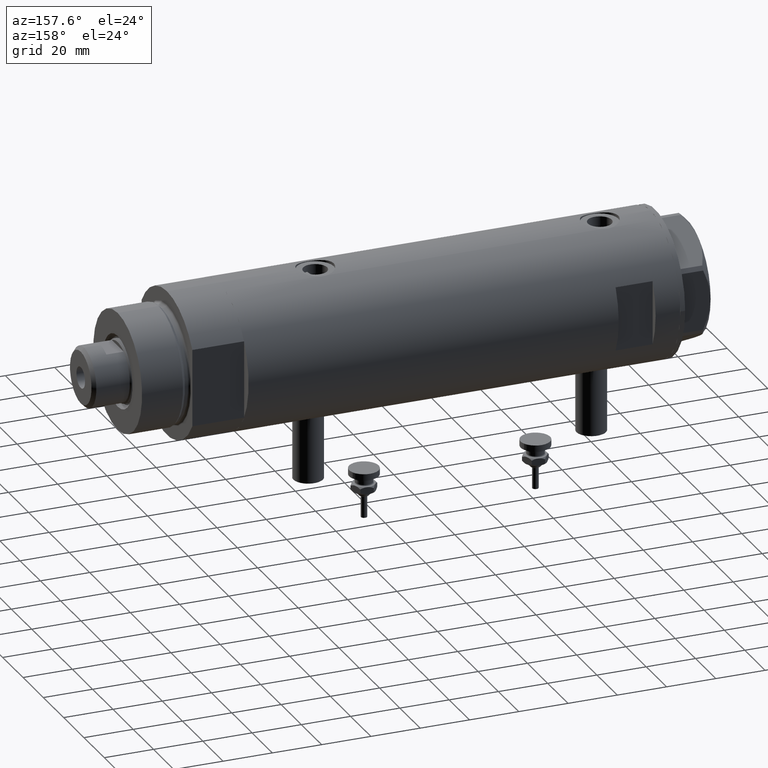
[diagram: clean part render]
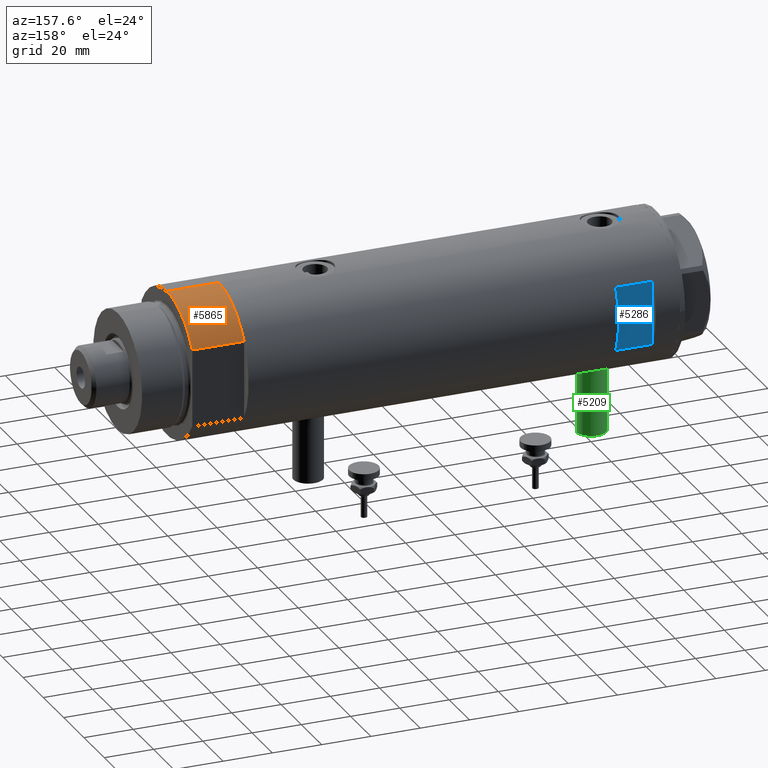
[diagram: same view with three faces highlighted in distinct colors, each labeled with its STEP entity id]
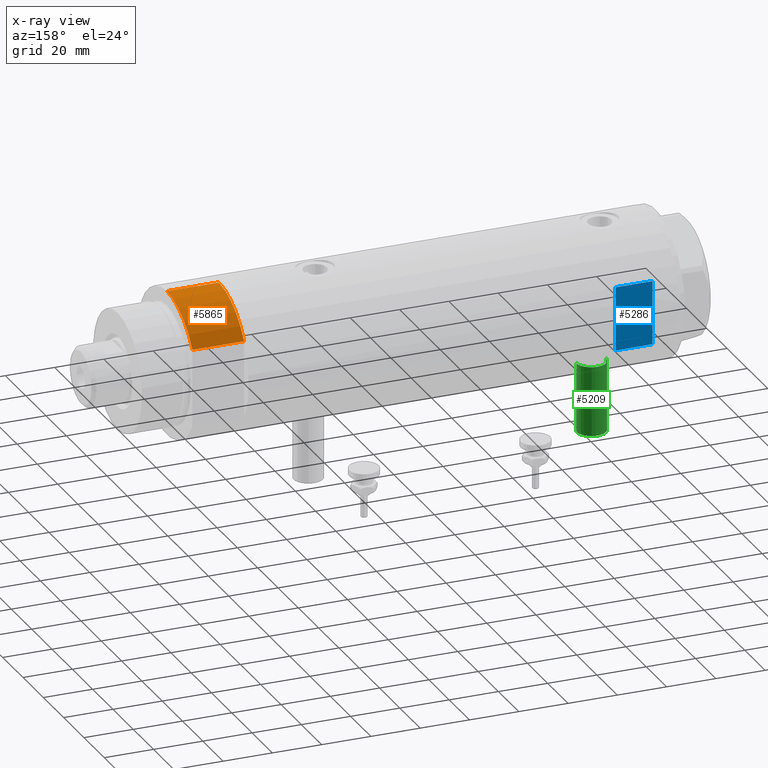
[diagram: x-ray of the same camera — body ghosted, the three highlighted faces saturated]
A machine part, auxiliary view with three faces highlighted in distinct colors.
The next image is the same camera in x-ray (body ghosted, the three faces saturated) — at least one of them is partly hidden behind the body in this view.
Their STEP definitions:

[orange] entity #5865 — the highlighted cylindrical surface (partial cylindrical patch) has radius 29.5 mm, axis along (-1, -0, 0).
#109 = DIRECTION ( 'NONE',  ( 1.000000000000000000, 0.000000000000000000, 0.000000000000000000 ) ) ;
#140 = DIRECTION ( 'NONE',  ( 0.000000000000000000, 0.000000000000000000, 1.000000000000000000 ) ) ;
#438 = CARTESIAN_POINT ( 'NONE',  ( -15.66045976336583045, 24.99999999999999645, 21.00000000000000355 ) ) ;
#573 = VERTEX_POINT ( 'NONE', #3435 ) ;
#882 = CARTESIAN_POINT ( 'NONE',  ( -15.66045976336583401, 25.00000000000000000, 0.000000000000000000 ) ) ;
#951 = DIRECTION ( 'NONE',  ( 0.000000000000000000, 0.000000000000000000, 1.000000000000000000 ) ) ;
#978 = DIRECTION ( 'NONE',  ( 1.000000000000000000, 0.000000000000000000, 0.000000000000000000 ) ) ;
#1574 = DIRECTION ( 'NONE',  ( -1.000000000000000000, 0.000000000000000000, 0.000000000000000000 ) ) ;
#1610 = FACE_OUTER_BOUND ( 'NONE', #5121, .T. ) ;
#1647 = EDGE_CURVE ( 'NONE', #1839, #2354, #5283, .T. ) ;
#1753 = ORIENTED_EDGE ( 'NONE', *, *, #5223, .F. ) ;
#1803 = CARTESIAN_POINT ( 'NONE',  ( -29.50000000000000355, 0.000000000000000000, 21.00000000000000000 ) ) ;
#1839 = VERTEX_POINT ( 'NONE', #2420 ) ;
#1917 = DIRECTION ( 'NONE',  ( -0.000000000000000000, -0.000000000000000000, 1.000000000000000000 ) ) ;
#2354 = VERTEX_POINT ( 'NONE', #3199 ) ;
#2368 = LINE ( 'NONE', #882, #5315 ) ;
#2420 = CARTESIAN_POINT ( 'NONE',  ( -15.66045976336583401, 25.00000000000000000, 0.000000000000000000 ) ) ;
#2622 = VECTOR ( 'NONE', #3623, 1000.000000000000000 ) ;
#3036 = CARTESIAN_POINT ( 'NONE',  ( 0.000000000000000000, 0.000000000000000000, 21.00000000000000000 ) ) ;
#3199 = CARTESIAN_POINT ( 'NONE',  ( -29.50000000000000355, 0.000000000000000000, 0.000000000000000000 ) ) ;
#3350 = CYLINDRICAL_SURFACE ( 'NONE', #5802, 29.50000000000000355 ) ;
#3435 = CARTESIAN_POINT ( 'NONE',  ( -29.50000000000000355, 0.000000000000000000, 21.00000000000000000 ) ) ;
#3484 = ORIENTED_EDGE ( 'NONE', *, *, #3759, .F. ) ;
#3511 = EDGE_CURVE ( 'NONE', #4218, #573, #5777, .T. ) ;
#3623 = DIRECTION ( 'NONE',  ( -0.000000000000000000, -0.000000000000000000, -1.000000000000000000 ) ) ;
#3759 = EDGE_CURVE ( 'NONE', #573, #2354, #5900, .T. ) ;
#4050 = AXIS2_PLACEMENT_3D ( 'NONE', #5917, #951, #978 ) ;
#4187 = ORIENTED_EDGE ( 'NONE', *, *, #1647, .T. ) ;
#4218 = VERTEX_POINT ( 'NONE', #438 ) ;
#4421 = AXIS2_PLACEMENT_3D ( 'NONE', #5049, #140, #109 ) ;
#5049 = CARTESIAN_POINT ( 'NONE',  ( 0.000000000000000000, 0.000000000000000000, 0.000000000000000000 ) ) ;
#5121 = EDGE_LOOP ( 'NONE', ( #3484, #5816, #1753, #4187 ) ) ;
#5223 = EDGE_CURVE ( 'NONE', #1839, #4218, #2368, .T. ) ;
#5235 = DIRECTION ( 'NONE',  ( -0.000000000000000000, -0.000000000000000000, -1.000000000000000000 ) ) ;
#5283 = CIRCLE ( 'NONE', #4421, 29.50000000000000355 ) ;
#5315 = VECTOR ( 'NONE', #1917, 1000.000000000000000 ) ;
#5777 = CIRCLE ( 'NONE', #4050, 29.50000000000000355 ) ;
#5802 = AXIS2_PLACEMENT_3D ( 'NONE', #3036, #5235, #1574 ) ;
#5816 = ORIENTED_EDGE ( 'NONE', *, *, #3511, .F. ) ;
#5865 = ADVANCED_FACE ( 'NONE', ( #1610 ), #3350, .T. ) ;
#5900 = LINE ( 'NONE', #1803, #2622 ) ;
#5917 = CARTESIAN_POINT ( 'NONE',  ( 0.000000000000000000, 0.000000000000000000, 21.00000000000000000 ) ) ;

[blue] entity #5286 — the highlighted planar face has unit normal (0, -1, -0).
#50 = CARTESIAN_POINT ( 'NONE',  ( -29.50000000000000355, 26.50000000000000355, 62.60000000000001563 ) ) ;
#395 = VECTOR ( 'NONE', #1891, 1000.000000000000000 ) ;
#460 = DIRECTION ( 'NONE',  ( 0.000000000000000000, 0.000000000000000000, 1.000000000000000000 ) ) ;
#551 = CARTESIAN_POINT ( 'NONE',  ( 12.96148139681573319, 26.49999999999999645, -87.59999999999999432 ) ) ;
#604 = VECTOR ( 'NONE', #4582, 1000.000000000000000 ) ;
#855 = VERTEX_POINT ( 'NONE', #4304 ) ;
#918 = FACE_OUTER_BOUND ( 'NONE', #2191, .T. ) ;
#928 = LINE ( 'NONE', #3253, #5676 ) ;
#1005 = ORIENTED_EDGE ( 'NONE', *, *, #1935, .T. ) ;
#1521 = AXIS2_PLACEMENT_3D ( 'NONE', #5512, #2743, #3706 ) ;
#1534 = CARTESIAN_POINT ( 'NONE',  ( -29.50000000000000355, 26.50000000000000355, 77.60000000000002274 ) ) ;
#1630 = ORIENTED_EDGE ( 'NONE', *, *, #2812, .T. ) ;
#1672 = CARTESIAN_POINT ( 'NONE',  ( -12.96148139681574030, 26.50000000000000355, 62.60000000000001563 ) ) ;
#1847 = EDGE_CURVE ( 'NONE', #855, #4257, #3262, .T. ) ;
#1873 = CARTESIAN_POINT ( 'NONE',  ( 12.96148139681571898, 26.50000000000000355, 62.60000000000001563 ) ) ;
#1891 = DIRECTION ( 'NONE',  ( 1.000000000000000000, -0.000000000000000000, -0.000000000000000000 ) ) ;
#1935 = EDGE_CURVE ( 'NONE', #4374, #855, #5062, .T. ) ;
#2138 = ORIENTED_EDGE ( 'NONE', *, *, #3033, .F. ) ;
#2191 = EDGE_LOOP ( 'NONE', ( #5591, #2138, #1630, #1005 ) ) ;
#2743 = DIRECTION ( 'NONE',  ( 0.000000000000000000, -1.000000000000000000, -0.000000000000000000 ) ) ;
#2812 = EDGE_CURVE ( 'NONE', #5063, #4374, #928, .T. ) ;
#3033 = EDGE_CURVE ( 'NONE', #5063, #4257, #5045, .T. ) ;
#3234 = CARTESIAN_POINT ( 'NONE',  ( -12.96148139681573319, 26.49999999999998934, 77.60000000000002274 ) ) ;
#3253 = CARTESIAN_POINT ( 'NONE',  ( -12.96148139681573319, 26.49999999999999645, -87.59999999999999432 ) ) ;
#3262 = LINE ( 'NONE', #551, #604 ) ;
#3706 = DIRECTION ( 'NONE',  ( 0.000000000000000000, 0.000000000000000000, -1.000000000000000000 ) ) ;
#4257 = VERTEX_POINT ( 'NONE', #1873 ) ;
#4304 = CARTESIAN_POINT ( 'NONE',  ( 12.96148139681573319, 26.49999999999998934, 77.60000000000002274 ) ) ;
#4374 = VERTEX_POINT ( 'NONE', #3234 ) ;
#4582 = DIRECTION ( 'NONE',  ( -0.000000000000000000, -0.000000000000000000, -1.000000000000000000 ) ) ;
#4618 = DIRECTION ( 'NONE',  ( 1.000000000000000000, -0.000000000000000000, -0.000000000000000000 ) ) ;
#5045 = LINE ( 'NONE', #50, #395 ) ;
#5062 = LINE ( 'NONE', #1534, #5579 ) ;
#5063 = VERTEX_POINT ( 'NONE', #1672 ) ;
#5286 = ADVANCED_FACE ( 'NONE', ( #918 ), #5890, .F. ) ;
#5512 = CARTESIAN_POINT ( 'NONE',  ( -29.50000000000000355, 26.50000000000000355, 77.60000000000002274 ) ) ;
#5579 = VECTOR ( 'NONE', #4618, 1000.000000000000000 ) ;
#5591 = ORIENTED_EDGE ( 'NONE', *, *, #1847, .T. ) ;
#5676 = VECTOR ( 'NONE', #460, 1000.000000000000000 ) ;
#5890 = PLANE ( 'NONE',  #1521 ) ;

[green] entity #5209 — the highlighted cylindrical surface (edge-blend (fillet) strip) has radius 6 mm, axis along (0, 0, 1).
#22 = VECTOR ( 'NONE', #1139, 1000.000000000000000 ) ;
#129 = VERTEX_POINT ( 'NONE', #2203 ) ;
#267 = LINE ( 'NONE', #1082, #22 ) ;
#913 = AXIS2_PLACEMENT_3D ( 'NONE', #1028, #3454, #4307 ) ;
#1028 = CARTESIAN_POINT ( 'NONE',  ( -56.60000000000000142, 0.000000000000000000, 63.59999999999998721 ) ) ;
#1068 = EDGE_CURVE ( 'NONE', #1304, #3911, #267, .T. ) ;
#1082 = CARTESIAN_POINT ( 'NONE',  ( -56.60000000000000142, 7.347880794884104945E-16, 69.59999999999998010 ) ) ;
#1139 = DIRECTION ( 'NONE',  ( 1.000000000000000000, -0.000000000000000000, -0.000000000000000000 ) ) ;
#1304 = VERTEX_POINT ( 'NONE', #2173 ) ;
#1360 = ORIENTED_EDGE ( 'NONE', *, *, #2293, .T. ) ;
#1408 = LINE ( 'NONE', #5033, #5481 ) ;
#1480 = FACE_OUTER_BOUND ( 'NONE', #3698, .T. ) ;
#1527 = AXIS2_PLACEMENT_3D ( 'NONE', #5014, #1794, #4983 ) ;
#1577 = EDGE_CURVE ( 'NONE', #4040, #129, #1408, .T. ) ;
#1794 = DIRECTION ( 'NONE',  ( 1.000000000000000000, -0.000000000000000000, -0.000000000000000000 ) ) ;
#1819 = CYLINDRICAL_SURFACE ( 'NONE', #1527, 5.999999999999991118 ) ;
#1883 = CIRCLE ( 'NONE', #913, 5.999999999999991118 ) ;
#2173 = CARTESIAN_POINT ( 'NONE',  ( -56.60000000000000142, 7.347880794884101001E-16, 69.59999999999998010 ) ) ;
#2198 = ORIENTED_EDGE ( 'NONE', *, *, #1577, .F. ) ;
#2203 = CARTESIAN_POINT ( 'NONE',  ( -28.30000000000000071, 0.000000000000000000, 57.60000000000000142 ) ) ;
#2227 = CIRCLE ( 'NONE', #4137, 5.999999999999991118 ) ;
#2293 = EDGE_CURVE ( 'NONE', #3911, #129, #2227, .T. ) ;
#2558 = ORIENTED_EDGE ( 'NONE', *, *, #4812, .F. ) ;
#2756 = ORIENTED_EDGE ( 'NONE', *, *, #1068, .T. ) ;
#3454 = DIRECTION ( 'NONE',  ( -1.000000000000000000, 0.000000000000000000, 0.000000000000000000 ) ) ;
#3617 = DIRECTION ( 'NONE',  ( 0.000000000000000000, 0.000000000000000000, 1.000000000000000000 ) ) ;
#3698 = EDGE_LOOP ( 'NONE', ( #2558, #2756, #1360, #2198 ) ) ;
#3832 = CARTESIAN_POINT ( 'NONE',  ( -56.60000000000000142, 0.000000000000000000, 57.60000000000000142 ) ) ;
#3911 = VERTEX_POINT ( 'NONE', #4200 ) ;
#4040 = VERTEX_POINT ( 'NONE', #3832 ) ;
#4137 = AXIS2_PLACEMENT_3D ( 'NONE', #5517, #4501, #3617 ) ;
#4162 = DIRECTION ( 'NONE',  ( 1.000000000000000000, -0.000000000000000000, -0.000000000000000000 ) ) ;
#4200 = CARTESIAN_POINT ( 'NONE',  ( -28.30000000000000071, 7.347880794884101001E-16, 69.59999999999998010 ) ) ;
#4307 = DIRECTION ( 'NONE',  ( 0.000000000000000000, 0.000000000000000000, 1.000000000000000000 ) ) ;
#4501 = DIRECTION ( 'NONE',  ( -1.000000000000000000, 0.000000000000000000, 0.000000000000000000 ) ) ;
#4812 = EDGE_CURVE ( 'NONE', #1304, #4040, #1883, .T. ) ;
#4983 = DIRECTION ( 'NONE',  ( 0.000000000000000000, 0.000000000000000000, -1.000000000000000000 ) ) ;
#5014 = CARTESIAN_POINT ( 'NONE',  ( -56.60000000000000142, 0.000000000000000000, 63.59999999999998721 ) ) ;
#5033 = CARTESIAN_POINT ( 'NONE',  ( -56.60000000000000142, 0.000000000000000000, 57.60000000000000142 ) ) ;
#5209 = ADVANCED_FACE ( 'NONE', ( #1480 ), #1819, .T. ) ;
#5481 = VECTOR ( 'NONE', #4162, 1000.000000000000000 ) ;
#5517 = CARTESIAN_POINT ( 'NONE',  ( -28.30000000000000071, 0.000000000000000000, 63.59999999999998721 ) ) ;